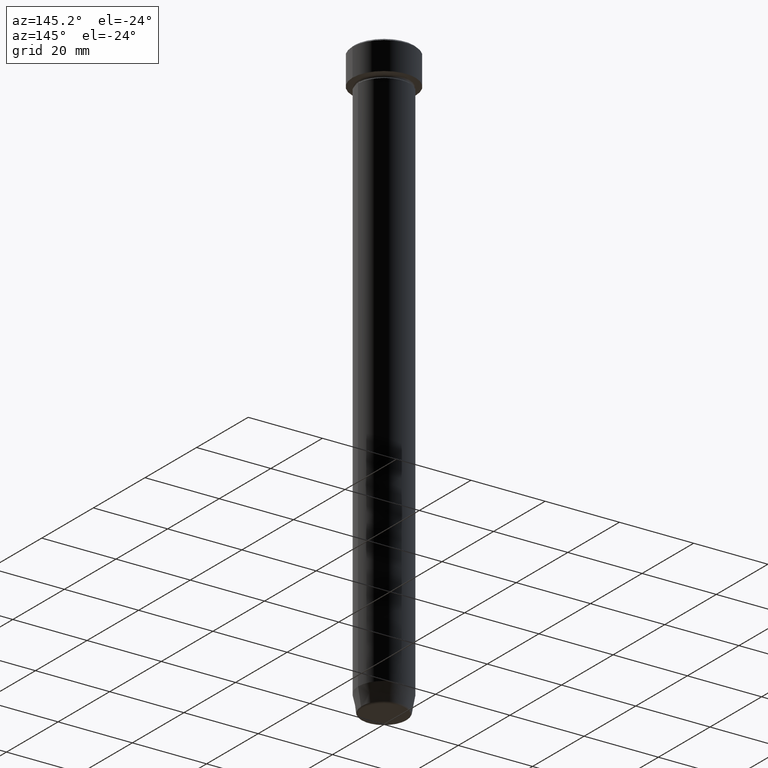
[diagram: clean part render]
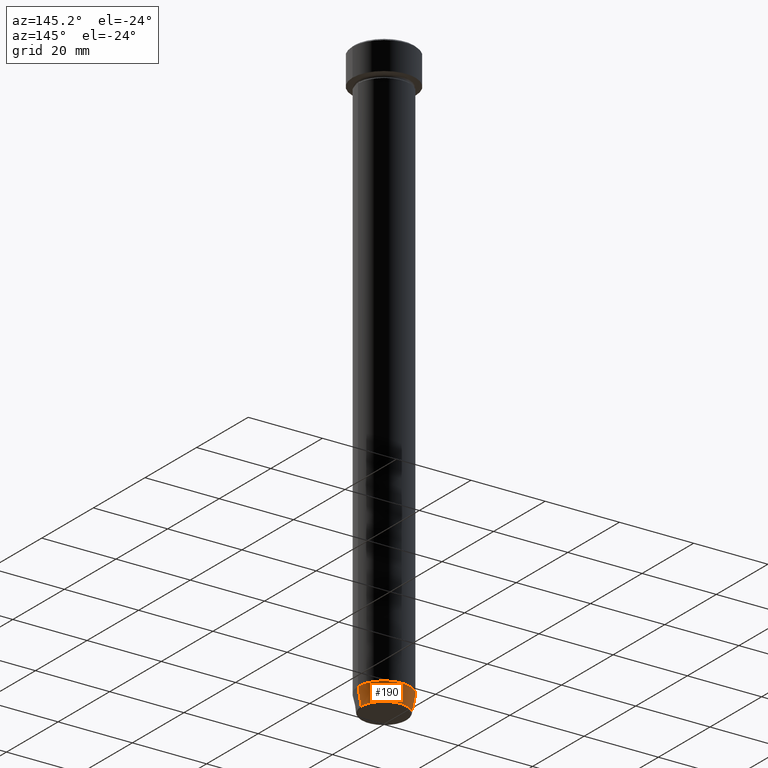
[diagram: same view with one face highlighted and labeled with its STEP entity id]
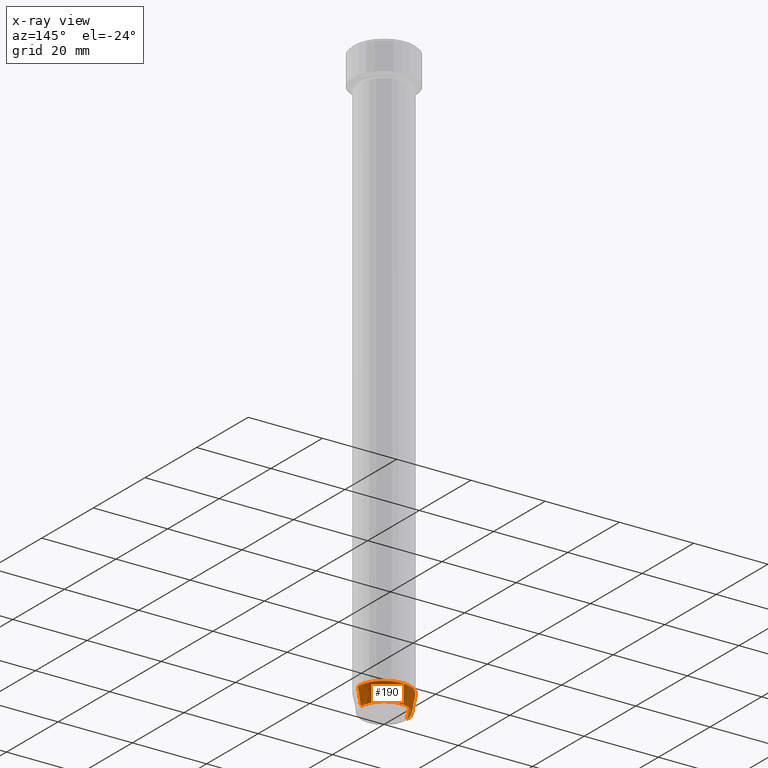
[diagram: x-ray of the same camera — body ghosted, the highlighted face saturated]
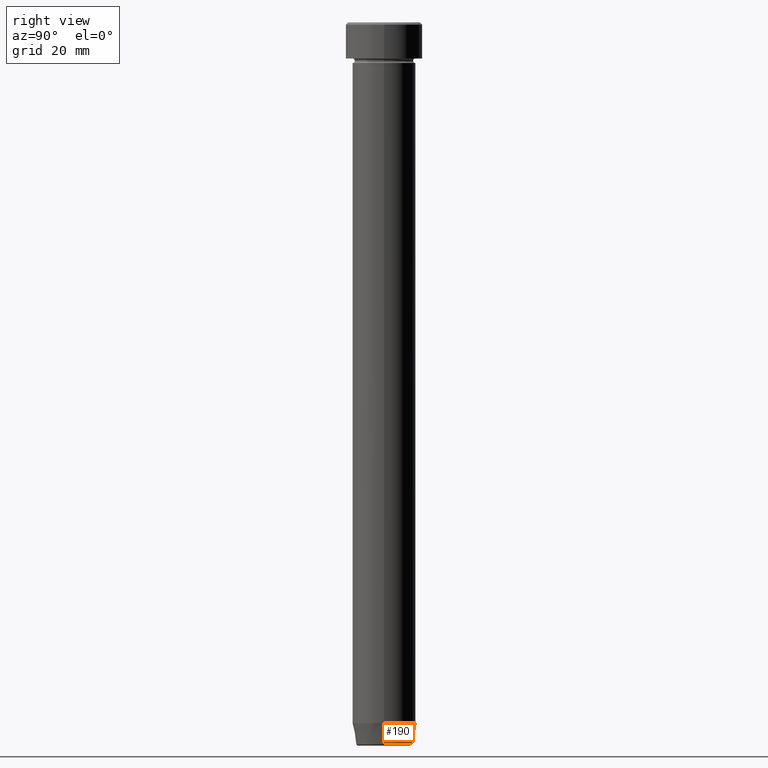
[diagram: same view with one face highlighted and labeled with its STEP entity id]
A machine part, auxiliary view. The second image highlights one B-rep face of the part: STEP entity #190.
The next image is the same camera in x-ray: the body ghosted, the highlighted face saturated — about 0% of this face is hidden behind the body in this view.
A second angle (right view) of the same face is appended — the face is thin or edge-on in the first view.
In plain terms, the highlighted conical surface has half-angle 10 deg.
Its self-contained STEP definition (entity closure, byte-faithful):
#6 = DIRECTION ( 'NONE',  ( 0.1736481776669292765, 0.000000000000000000, 0.9848077530122082424 ) ) ;
#10 = CARTESIAN_POINT ( 'NONE',  ( 6.118365096457679009, 0.000000000000000000, -160.0000000000000000 ) ) ;
#22 = EDGE_LOOP ( 'NONE', ( #405, #302, #308, #495 ) ) ;
#30 = VERTEX_POINT ( 'NONE', #418 ) ;
#47 = EDGE_CURVE ( 'NONE', #116, #402, #597, .T. ) ;
#69 = EDGE_CURVE ( 'NONE', #249, #402, #233, .T. ) ;
#96 = FACE_OUTER_BOUND ( 'NONE', #22, .T. ) ;
#116 = VERTEX_POINT ( 'NONE', #325 ) ;
#174 = EDGE_CURVE ( 'NONE', #30, #116, #413, .T. ) ;
#182 = DIRECTION ( 'NONE',  ( -0.1736481776669292765, 2.126576849575758356E-17, 0.9848077530122082424 ) ) ;
#190 = ADVANCED_FACE ( 'NONE', ( #96 ), #210, .T. ) ;
#210 = CONICAL_SURFACE ( 'NONE', #481, 6.118365096457679009, 0.1745329251994318653 ) ;
#226 = CARTESIAN_POINT ( 'NONE',  ( -6.999999999999999112, 8.572527594031472204E-16, -155.0000000000000000 ) ) ;
#227 = VECTOR ( 'NONE', #182, 1000.000000000000000 ) ;
#233 = LINE ( 'NONE', #595, #227 ) ;
#240 = DIRECTION ( 'NONE',  ( 1.000000000000000000, 0.000000000000000000, 0.000000000000000000 ) ) ;
#249 = VERTEX_POINT ( 'NONE', #388 ) ;
#302 = ORIENTED_EDGE ( 'NONE', *, *, #69, .T. ) ;
#308 = ORIENTED_EDGE ( 'NONE', *, *, #47, .F. ) ;
#317 = AXIS2_PLACEMENT_3D ( 'NONE', #504, #362, #416 ) ;
#325 = CARTESIAN_POINT ( 'NONE',  ( 6.999999999999999112, 0.000000000000000000, -155.0000000000000000 ) ) ;
#354 = AXIS2_PLACEMENT_3D ( 'NONE', #438, #485, #399 ) ;
#356 = VECTOR ( 'NONE', #6, 1000.000000000000000 ) ;
#362 = DIRECTION ( 'NONE',  ( -0.000000000000000000, -0.000000000000000000, 1.000000000000000000 ) ) ;
#388 = CARTESIAN_POINT ( 'NONE',  ( -6.191219157375146942, 8.077292158965359378E-16, -159.5868240888334526 ) ) ;
#399 = DIRECTION ( 'NONE',  ( -1.000000000000000000, 0.000000000000000000, 0.000000000000000000 ) ) ;
#402 = VERTEX_POINT ( 'NONE', #226 ) ;
#405 = ORIENTED_EDGE ( 'NONE', *, *, #596, .T. ) ;
#413 = LINE ( 'NONE', #10, #356 ) ;
#416 = DIRECTION ( 'NONE',  ( 1.000000000000000000, 0.000000000000000000, 0.000000000000000000 ) ) ;
#418 = CARTESIAN_POINT ( 'NONE',  ( 6.191219157375146942, 0.000000000000000000, -159.5868240888334526 ) ) ;
#438 = CARTESIAN_POINT ( 'NONE',  ( 0.000000000000000000, 0.000000000000000000, -159.5868240888334526 ) ) ;
#440 = CIRCLE ( 'NONE', #354, 6.191219157375146054 ) ;
#472 = CARTESIAN_POINT ( 'NONE',  ( 0.000000000000000000, 0.000000000000000000, -160.0000000000000000 ) ) ;
#481 = AXIS2_PLACEMENT_3D ( 'NONE', #472, #565, #240 ) ;
#485 = DIRECTION ( 'NONE',  ( -0.000000000000000000, -0.000000000000000000, 1.000000000000000000 ) ) ;
#495 = ORIENTED_EDGE ( 'NONE', *, *, #174, .F. ) ;
#504 = CARTESIAN_POINT ( 'NONE',  ( 0.000000000000000000, 0.000000000000000000, -155.0000000000000000 ) ) ;
#565 = DIRECTION ( 'NONE',  ( -0.000000000000000000, -0.000000000000000000, 1.000000000000000000 ) ) ;
#595 = CARTESIAN_POINT ( 'NONE',  ( -6.118365096457679009, 7.492836231391783526E-16, -160.0000000000000000 ) ) ;
#596 = EDGE_CURVE ( 'NONE', #30, #249, #440, .T. ) ;
#597 = CIRCLE ( 'NONE', #317, 6.999999999999999112 ) ;